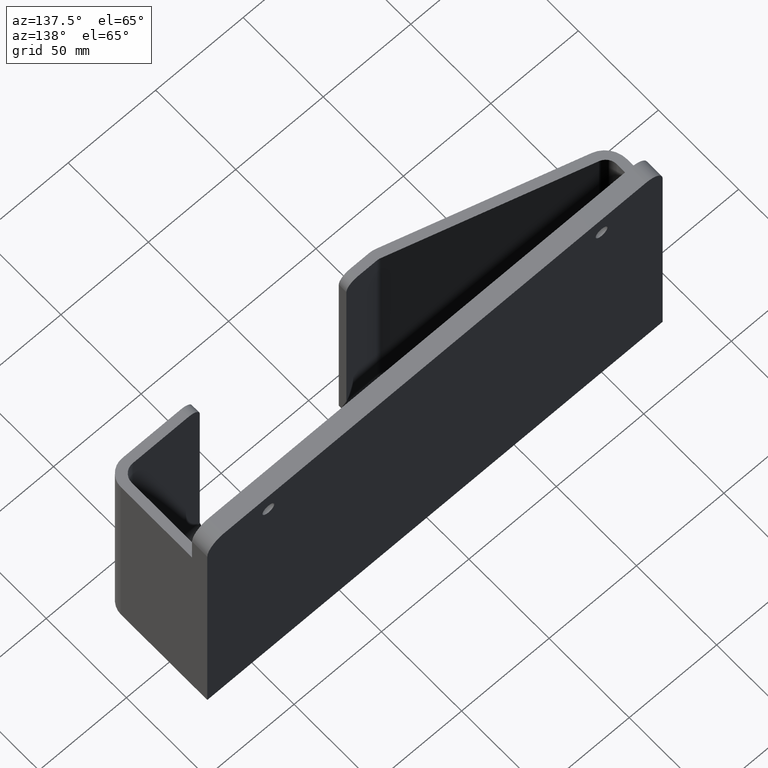
[diagram: clean part render]
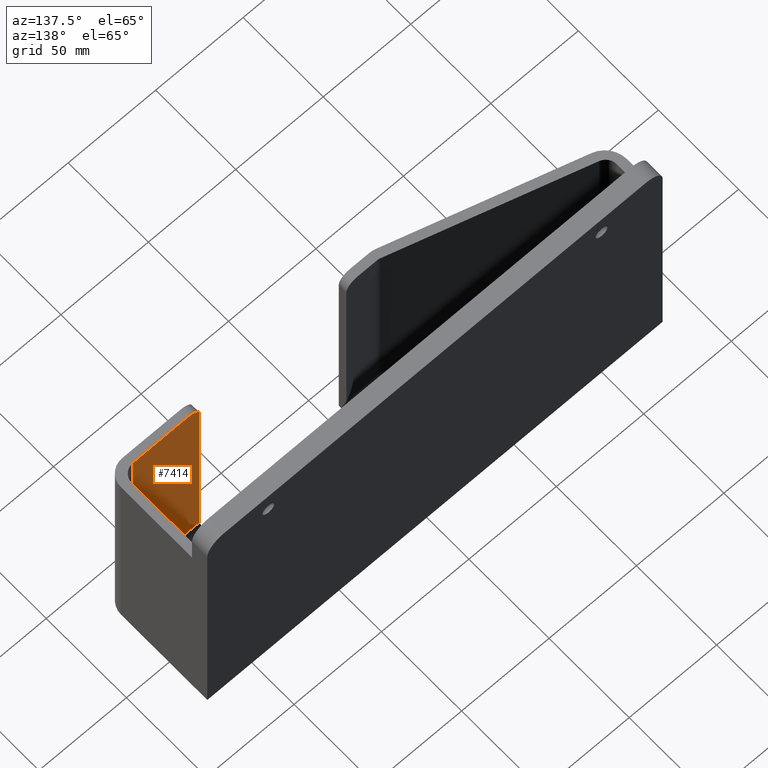
[diagram: same view with one face highlighted and labeled with its STEP entity id]
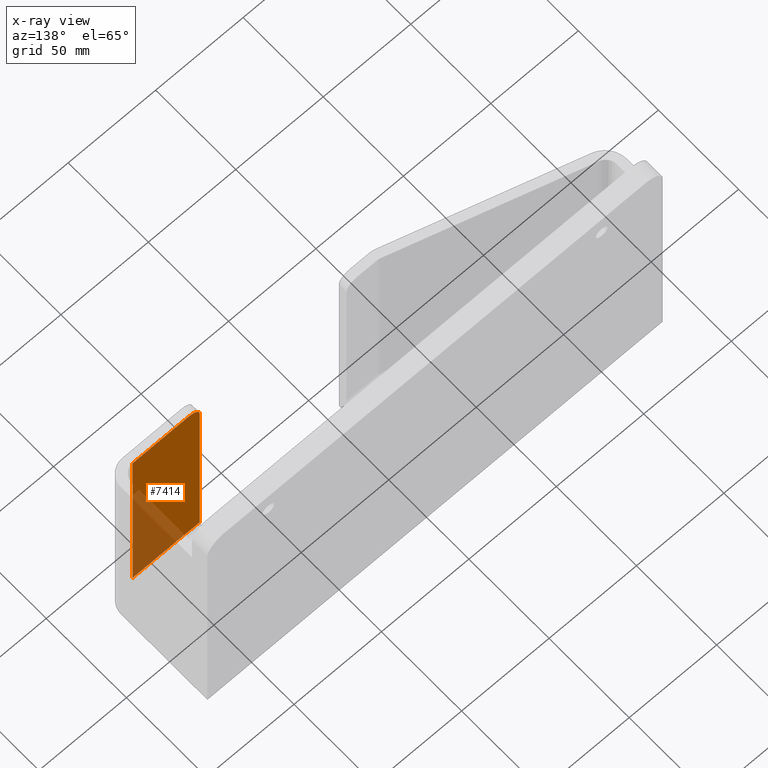
[diagram: x-ray of the same camera — body ghosted, the highlighted face saturated]
A machine part, auxiliary view. The second image highlights one B-rep face of the part: STEP entity #7414.
The next image is the same camera in x-ray: the body ghosted, the highlighted face saturated — about 31% of this face is hidden behind the body in this view.
In plain terms, the highlighted planar face has unit normal (-0, 1, 0).
Its self-contained STEP definition (entity closure, byte-faithful):
#117 = DIRECTION ( 'NONE',  ( 0.0000000000000000000, 0.0000000000000000000, -1.000000000000000000 ) ) ;
#118 = CARTESIAN_POINT ( 'NONE',  ( 4.562102906775091800, -1.312500000000000900, 0.3750000000000002200 ) ) ;
#124 = DIRECTION ( 'NONE',  ( -1.000000000000000000, 0.0000000000000000000, 0.0000000000000000000 ) ) ;
#126 = DIRECTION ( 'NONE',  ( -1.416663888520787000E-016, 1.000000000000000000, 0.0000000000000000000 ) ) ;
#131 = CARTESIAN_POINT ( 'NONE',  ( 3.300000000000000300, -1.312500000000000900, 4.750000000000000000 ) ) ;
#132 = DIRECTION ( 'NONE',  ( -1.000000000000000000, -1.416663888520787000E-016, -1.066087021917761500E-016 ) ) ;
#133 = CARTESIAN_POINT ( 'NONE',  ( 4.812102906775091800, -1.312500000000000900, 5.000000000000000000 ) ) ;
#137 = DIRECTION ( 'NONE',  ( -1.000000000000000000, -1.416663888520787000E-016, 0.0000000000000000000 ) ) ;
#143 = CARTESIAN_POINT ( 'NONE',  ( 4.812102906775091800, -1.312500000000000900, 0.4999999999999996100 ) ) ;
#153 = DIRECTION ( 'NONE',  ( 1.092739197465705400E-016, 1.548044160620850300E-032, -1.000000000000000000 ) ) ;
#156 = CARTESIAN_POINT ( 'NONE',  ( 3.050000000000001200, -1.312500000000001100, 6.000000000000000900 ) ) ;
#441 = LINE ( 'NONE', #156, #445 ) ;
#445 = VECTOR ( 'NONE', #153, 39.37007874015748100 ) ;
#452 = LINE ( 'NONE', #143, #457 ) ;
#457 = VECTOR ( 'NONE', #137, 39.37007874015748100 ) ;
#461 = LINE ( 'NONE', #133, #462 ) ;
#462 = VECTOR ( 'NONE', #132, 39.37007874015748100 ) ;
#466 = CIRCLE ( 'NONE', #1423, 0.2499999999999998100 ) ;
#469 = LINE ( 'NONE', #118, #470 ) ;
#470 = VECTOR ( 'NONE', #117, 39.37007874015748100 ) ;
#637 = EDGE_LOOP ( 'NONE', ( #5605, #5604, #5603, #5602, #5601 ) ) ;
#1233 = VERTEX_POINT ( 'NONE', #4585 ) ;
#1333 = VERTEX_POINT ( 'NONE', #4470 ) ;
#1337 = VERTEX_POINT ( 'NONE', #4466 ) ;
#1350 = VERTEX_POINT ( 'NONE', #4452 ) ;
#1369 = VERTEX_POINT ( 'NONE', #4432 ) ;
#1423 = AXIS2_PLACEMENT_3D ( 'NONE', #131, #126, #124 ) ;
#2270 = DIRECTION ( 'NONE',  ( -1.416663888520787000E-016, 1.000000000000000000, 0.0000000000000000000 ) ) ;
#2271 = PLANE ( 'NONE',  #4916 ) ;
#2434 = DIRECTION ( 'NONE',  ( -1.000000000000000000, -1.416663888520787000E-016, 0.0000000000000000000 ) ) ;
#2852 = CARTESIAN_POINT ( 'NONE',  ( 4.812102906775091800, -1.312500000000000900, 6.000000000000000900 ) ) ;
#3942 = FACE_OUTER_BOUND ( 'NONE', #637, .T. ) ;
#4432 = CARTESIAN_POINT ( 'NONE',  ( 3.300000000000000300, -1.312500000000001100, 5.000000000000000000 ) ) ;
#4452 = CARTESIAN_POINT ( 'NONE',  ( 4.562102906775091800, -1.312500000000000900, 0.4999999999999996100 ) ) ;
#4466 = CARTESIAN_POINT ( 'NONE',  ( 3.050000000000001200, -1.312500000000001100, 4.750000000000000000 ) ) ;
#4470 = CARTESIAN_POINT ( 'NONE',  ( 3.050000000000001600, -1.312500000000001100, 0.4999999999999996100 ) ) ;
#4585 = CARTESIAN_POINT ( 'NONE',  ( 4.562102906775091800, -1.312500000000000900, 5.000000000000000000 ) ) ;
#4916 = AXIS2_PLACEMENT_3D ( 'NONE', #2852, #2270, #2434 ) ;
#5209 = EDGE_CURVE ( 'NONE', #1337, #1333, #441, .T. ) ;
#5215 = EDGE_CURVE ( 'NONE', #1350, #1333, #452, .T. ) ;
#5217 = EDGE_CURVE ( 'NONE', #1233, #1369, #461, .T. ) ;
#5219 = EDGE_CURVE ( 'NONE', #1337, #1369, #466, .T. ) ;
#5222 = EDGE_CURVE ( 'NONE', #1233, #1350, #469, .T. ) ;
#5601 = ORIENTED_EDGE ( 'NONE', *, *, #5217, .F. ) ;
#5602 = ORIENTED_EDGE ( 'NONE', *, *, #5219, .T. ) ;
#5603 = ORIENTED_EDGE ( 'NONE', *, *, #5209, .F. ) ;
#5604 = ORIENTED_EDGE ( 'NONE', *, *, #5215, .T. ) ;
#5605 = ORIENTED_EDGE ( 'NONE', *, *, #5222, .T. ) ;
#7414 = ADVANCED_FACE ( 'NONE', ( #3942 ), #2271, .T. ) ;